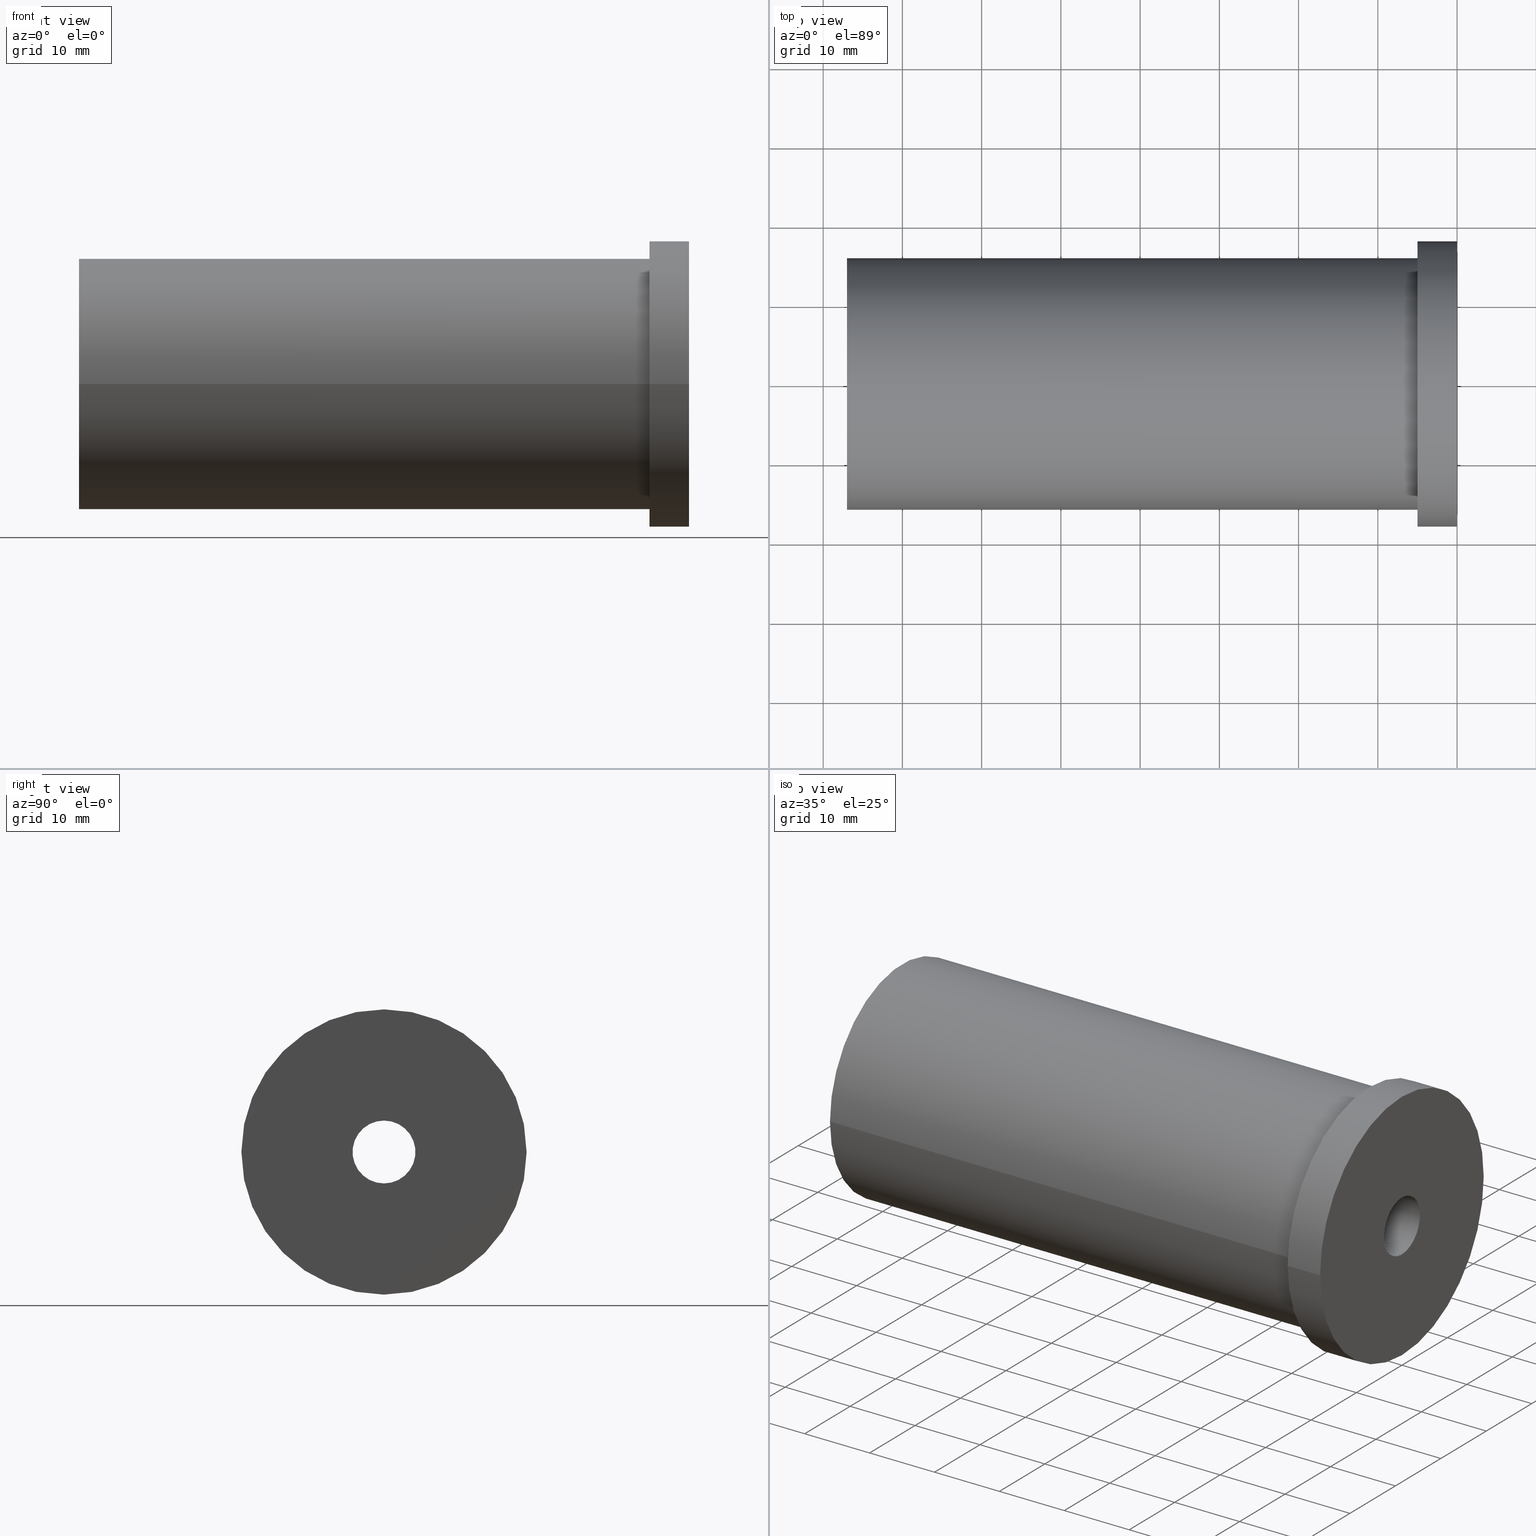
[diagram: canonical four-view strip — front | top / right | iso, engineering-drawing reading convention]
A machine part, canonical four-view strip (front | top / right | iso — engineering-drawing reading convention). The complete STEP part file that produces these views, byte-faithful:
ISO-10303-21;
HEADER;
/* Generated by software containing ST-Developer
 * from STEP Tools, Inc. (www.steptools.com) 
 */

FILE_DESCRIPTION(
/* description */ (''),
/* implementation_level */ '2;1');

FILE_NAME(
/* name */ 
'Z:\\\X2\C5F0AD6CC18C\X0\\\DRAWING_3D\\1. \X2\C778BCA4D130\X0\\\4. LAY
-OUT\\ACCESSORY&OTEHERS\\POWER MILLING CHUCK\\CK-COLLET\\INCH\\CK31.75
\\CK31.75-7.9375\\CK31.75-7.9375.stp',
/* time_stamp */ '2023-06-13T13:29:21+09:00',
/* author */ ('eos'),
/* organization */ (''),
/* preprocessor_version */ 'ST-DEVELOPER v18.1',
/* originating_system */ 'Autodesk Inventor 2022',
/* authorisation */ '');

FILE_SCHEMA (('AUTOMOTIVE_DESIGN { 1 0 10303 214 3 1 1 }'));
ENDSEC;

DATA;
#10=MECHANICAL_DESIGN_GEOMETRIC_PRESENTATION_REPRESENTATION('',(#13),#289);
#11=SHAPE_REPRESENTATION_RELATIONSHIP('SRR','None',#296,#12);
#12=ADVANCED_BREP_SHAPE_REPRESENTATION('',(#14),#288);
#13=STYLED_ITEM('',(#305),#14);
#14=MANIFOLD_SOLID_BREP('\X2\C194B9ACB4DC\X0\1',#151);
#15=FACE_BOUND('',#40,.T.);
#16=FACE_BOUND('',#42,.T.);
#17=FACE_BOUND('',#45,.T.);
#18=PLANE('',#189);
#19=PLANE('',#190);
#20=PLANE('',#194);
#21=CONICAL_SURFACE('',#178,5.,1.02974425867665);
#22=CONICAL_SURFACE('',#182,6.3440505,1.02974425867665);
#23=FACE_OUTER_BOUND('',#33,.T.);
#24=FACE_OUTER_BOUND('',#34,.T.);
#25=FACE_OUTER_BOUND('',#35,.T.);
#26=FACE_OUTER_BOUND('',#36,.T.);
#27=FACE_OUTER_BOUND('',#37,.T.);
#28=FACE_OUTER_BOUND('',#38,.T.);
#29=FACE_OUTER_BOUND('',#39,.T.);
#30=FACE_OUTER_BOUND('',#41,.T.);
#31=FACE_OUTER_BOUND('',#43,.T.);
#32=FACE_OUTER_BOUND('',#44,.T.);
#33=EDGE_LOOP('',(#100,#101,#102,#103,#104));
#34=EDGE_LOOP('',(#105,#106,#107,#108,#109));
#35=EDGE_LOOP('',(#110,#111,#112,#113));
#36=EDGE_LOOP('',(#114,#115,#116,#117));
#37=EDGE_LOOP('',(#118,#119,#120,#121));
#38=EDGE_LOOP('',(#122,#123,#124,#125));
#39=EDGE_LOOP('',(#126));
#40=EDGE_LOOP('',(#127));
#41=EDGE_LOOP('',(#128));
#42=EDGE_LOOP('',(#129));
#43=EDGE_LOOP('',(#130,#131,#132,#133));
#44=EDGE_LOOP('',(#134));
#45=EDGE_LOOP('',(#135));
#46=LINE('',#251,#53);
#47=LINE('',#258,#54);
#48=LINE('',#262,#55);
#49=LINE('',#266,#56);
#50=LINE('',#270,#57);
#51=LINE('',#275,#58);
#52=LINE('',#284,#59);
#53=VECTOR('',#201,3.96875);
#54=VECTOR('',#210,5.);
#55=VECTOR('',#215,10.);
#56=VECTOR('',#220,6.3440505);
#57=VECTOR('',#225,12.688101);
#58=VECTOR('',#230,18.);
#59=VECTOR('',#243,15.8750000000001);
#60=CIRCLE('',#175,3.96875);
#61=CIRCLE('',#176,3.96875);
#62=CIRCLE('',#177,3.96875);
#63=CIRCLE('',#179,10.);
#64=CIRCLE('',#181,10.);
#65=CIRCLE('',#183,12.688101);
#66=CIRCLE('',#185,12.688101);
#67=CIRCLE('',#187,18.);
#68=CIRCLE('',#188,18.);
#69=CIRCLE('',#191,15.875);
#70=CIRCLE('',#193,15.8750000000001);
#71=VERTEX_POINT('',#248);
#72=VERTEX_POINT('',#250);
#73=VERTEX_POINT('',#252);
#74=VERTEX_POINT('',#256);
#75=VERTEX_POINT('',#260);
#76=VERTEX_POINT('',#264);
#77=VERTEX_POINT('',#268);
#78=VERTEX_POINT('',#272);
#79=VERTEX_POINT('',#274);
#80=VERTEX_POINT('',#279);
#81=VERTEX_POINT('',#282);
#82=EDGE_CURVE('',#71,#71,#60,.T.);
#83=EDGE_CURVE('',#71,#72,#46,.T.);
#84=EDGE_CURVE('',#73,#72,#61,.T.);
#85=EDGE_CURVE('',#72,#73,#62,.T.);
#86=EDGE_CURVE('',#74,#74,#63,.T.);
#87=EDGE_CURVE('',#74,#73,#47,.T.);
#88=EDGE_CURVE('',#75,#75,#64,.T.);
#89=EDGE_CURVE('',#75,#74,#48,.T.);
#90=EDGE_CURVE('',#76,#76,#65,.T.);
#91=EDGE_CURVE('',#76,#75,#49,.T.);
#92=EDGE_CURVE('',#77,#77,#66,.T.);
#93=EDGE_CURVE('',#77,#76,#50,.T.);
#94=EDGE_CURVE('',#78,#78,#67,.T.);
#95=EDGE_CURVE('',#78,#79,#51,.T.);
#96=EDGE_CURVE('',#79,#79,#68,.T.);
#97=EDGE_CURVE('',#80,#80,#69,.T.);
#98=EDGE_CURVE('',#81,#81,#70,.T.);
#99=EDGE_CURVE('',#81,#80,#52,.T.);
#100=ORIENTED_EDGE('',*,*,#82,.F.);
#101=ORIENTED_EDGE('',*,*,#83,.T.);
#102=ORIENTED_EDGE('',*,*,#84,.F.);
#103=ORIENTED_EDGE('',*,*,#85,.F.);
#104=ORIENTED_EDGE('',*,*,#83,.F.);
#105=ORIENTED_EDGE('',*,*,#86,.T.);
#106=ORIENTED_EDGE('',*,*,#87,.T.);
#107=ORIENTED_EDGE('',*,*,#84,.T.);
#108=ORIENTED_EDGE('',*,*,#85,.T.);
#109=ORIENTED_EDGE('',*,*,#87,.F.);
#110=ORIENTED_EDGE('',*,*,#88,.F.);
#111=ORIENTED_EDGE('',*,*,#89,.T.);
#112=ORIENTED_EDGE('',*,*,#86,.F.);
#113=ORIENTED_EDGE('',*,*,#89,.F.);
#114=ORIENTED_EDGE('',*,*,#90,.T.);
#115=ORIENTED_EDGE('',*,*,#91,.T.);
#116=ORIENTED_EDGE('',*,*,#88,.T.);
#117=ORIENTED_EDGE('',*,*,#91,.F.);
#118=ORIENTED_EDGE('',*,*,#92,.F.);
#119=ORIENTED_EDGE('',*,*,#93,.T.);
#120=ORIENTED_EDGE('',*,*,#90,.F.);
#121=ORIENTED_EDGE('',*,*,#93,.F.);
#122=ORIENTED_EDGE('',*,*,#94,.F.);
#123=ORIENTED_EDGE('',*,*,#95,.T.);
#124=ORIENTED_EDGE('',*,*,#96,.T.);
#125=ORIENTED_EDGE('',*,*,#95,.F.);
#126=ORIENTED_EDGE('',*,*,#94,.T.);
#127=ORIENTED_EDGE('',*,*,#82,.T.);
#128=ORIENTED_EDGE('',*,*,#97,.F.);
#129=ORIENTED_EDGE('',*,*,#92,.T.);
#130=ORIENTED_EDGE('',*,*,#98,.F.);
#131=ORIENTED_EDGE('',*,*,#99,.T.);
#132=ORIENTED_EDGE('',*,*,#97,.T.);
#133=ORIENTED_EDGE('',*,*,#99,.F.);
#134=ORIENTED_EDGE('',*,*,#96,.F.);
#135=ORIENTED_EDGE('',*,*,#98,.T.);
#136=CYLINDRICAL_SURFACE('',#174,3.96875);
#137=CYLINDRICAL_SURFACE('',#180,10.);
#138=CYLINDRICAL_SURFACE('',#184,12.688101);
#139=CYLINDRICAL_SURFACE('',#186,18.);
#140=CYLINDRICAL_SURFACE('',#192,15.8750000000001);
#141=ADVANCED_FACE('',(#23),#136,.F.);
#142=ADVANCED_FACE('',(#24),#21,.F.);
#143=ADVANCED_FACE('',(#25),#137,.F.);
#144=ADVANCED_FACE('',(#26),#22,.F.);
#145=ADVANCED_FACE('',(#27),#138,.F.);
#146=ADVANCED_FACE('',(#28),#139,.T.);
#147=ADVANCED_FACE('',(#29,#15),#18,.T.);
#148=ADVANCED_FACE('',(#30,#16),#19,.T.);
#149=ADVANCED_FACE('',(#31),#140,.T.);
#150=ADVANCED_FACE('',(#32,#17),#20,.T.);
#151=CLOSED_SHELL('',(#141,#142,#143,#144,#145,#146,#147,#148,#149,#150));
#152=DERIVED_UNIT_ELEMENT(#155,1.);
#153=DERIVED_UNIT_ELEMENT(#291,-3.);
#154=DIMENSIONAL_EXPONENTS(1.,0.,0.,0.,0.,0.,0.);
#155=(
CONVERSION_BASED_UNIT('gram',#157)
MASS_UNIT()
NAMED_UNIT(#154)
);
#156=(
MASS_UNIT()
NAMED_UNIT(*)
SI_UNIT(.KILO.,.GRAM.)
);
#157=MASS_MEASURE_WITH_UNIT(MASS_MEASURE(0.001),#156);
#158=DERIVED_UNIT((#152,#153));
#159=MEASURE_REPRESENTATION_ITEM('density measure',
POSITIVE_RATIO_MEASURE(1.),#158);
#160=PROPERTY_DEFINITION_REPRESENTATION(#165,#162);
#161=PROPERTY_DEFINITION_REPRESENTATION(#166,#163);
#162=REPRESENTATION('material name',(#164),#288);
#163=REPRESENTATION('density',(#159),#288);
#164=DESCRIPTIVE_REPRESENTATION_ITEM('\X2\C77CBC18\X0\','\X2\C77CBC18\X0\');
#165=PROPERTY_DEFINITION('material property','material name',#298);
#166=PROPERTY_DEFINITION('material property','density of part',#298);
#167=DATE_TIME_ROLE('creation_date');
#168=APPLIED_DATE_AND_TIME_ASSIGNMENT(#169,#167,(#298));
#169=DATE_AND_TIME(#170,#171);
#170=CALENDAR_DATE(2023,13,6);
#171=LOCAL_TIME(0,0,0.,#172);
#172=COORDINATED_UNIVERSAL_TIME_OFFSET(0,0,.BEHIND.);
#173=AXIS2_PLACEMENT_3D('placement',#246,#195,#196);
#174=AXIS2_PLACEMENT_3D('',#247,#197,#198);
#175=AXIS2_PLACEMENT_3D('',#249,#199,#200);
#176=AXIS2_PLACEMENT_3D('',#253,#202,#203);
#177=AXIS2_PLACEMENT_3D('',#254,#204,#205);
#178=AXIS2_PLACEMENT_3D('',#255,#206,#207);
#179=AXIS2_PLACEMENT_3D('',#257,#208,#209);
#180=AXIS2_PLACEMENT_3D('',#259,#211,#212);
#181=AXIS2_PLACEMENT_3D('',#261,#213,#214);
#182=AXIS2_PLACEMENT_3D('',#263,#216,#217);
#183=AXIS2_PLACEMENT_3D('',#265,#218,#219);
#184=AXIS2_PLACEMENT_3D('',#267,#221,#222);
#185=AXIS2_PLACEMENT_3D('',#269,#223,#224);
#186=AXIS2_PLACEMENT_3D('',#271,#226,#227);
#187=AXIS2_PLACEMENT_3D('',#273,#228,#229);
#188=AXIS2_PLACEMENT_3D('',#276,#231,#232);
#189=AXIS2_PLACEMENT_3D('',#277,#233,#234);
#190=AXIS2_PLACEMENT_3D('',#278,#235,#236);
#191=AXIS2_PLACEMENT_3D('',#280,#237,#238);
#192=AXIS2_PLACEMENT_3D('',#281,#239,#240);
#193=AXIS2_PLACEMENT_3D('',#283,#241,#242);
#194=AXIS2_PLACEMENT_3D('',#285,#244,#245);
#195=DIRECTION('axis',(0.,0.,1.));
#196=DIRECTION('refdir',(1.,0.,0.));
#197=DIRECTION('center_axis',(1.,0.,0.));
#198=DIRECTION('ref_axis',(0.,0.,-1.));
#199=DIRECTION('center_axis',(-1.,0.,0.));
#200=DIRECTION('ref_axis',(0.,0.,-1.));
#201=DIRECTION('',(-1.,0.,0.));
#202=DIRECTION('center_axis',(1.,0.,0.));
#203=DIRECTION('ref_axis',(0.,0.,-1.));
#204=DIRECTION('center_axis',(1.,0.,0.));
#205=DIRECTION('ref_axis',(0.,0.,-1.));
#206=DIRECTION('center_axis',(-1.,0.,0.));
#207=DIRECTION('ref_axis',(0.,0.,1.));
#208=DIRECTION('center_axis',(-1.,0.,0.));
#209=DIRECTION('ref_axis',(0.,0.,1.));
#210=DIRECTION('',(0.515038074910054,1.04972719113862E-16,0.857167300702112));
#211=DIRECTION('center_axis',(-1.,0.,0.));
#212=DIRECTION('ref_axis',(0.,0.,1.));
#213=DIRECTION('center_axis',(1.,0.,0.));
#214=DIRECTION('ref_axis',(0.,0.,1.));
#215=DIRECTION('',(1.,0.,0.));
#216=DIRECTION('center_axis',(-1.,0.,0.));
#217=DIRECTION('ref_axis',(0.,0.,1.));
#218=DIRECTION('center_axis',(-1.,0.,0.));
#219=DIRECTION('ref_axis',(0.,0.,1.));
#220=DIRECTION('',(0.515038074910054,1.04972719113862E-16,0.857167300702112));
#221=DIRECTION('center_axis',(-1.,0.,0.));
#222=DIRECTION('ref_axis',(0.,0.,1.));
#223=DIRECTION('center_axis',(1.,0.,0.));
#224=DIRECTION('ref_axis',(0.,0.,1.));
#225=DIRECTION('',(1.,0.,0.));
#226=DIRECTION('center_axis',(1.,0.,0.));
#227=DIRECTION('ref_axis',(0.,1.,0.));
#228=DIRECTION('center_axis',(1.,0.,0.));
#229=DIRECTION('ref_axis',(0.,0.,-1.));
#230=DIRECTION('',(-1.,0.,0.));
#231=DIRECTION('center_axis',(1.,0.,0.));
#232=DIRECTION('ref_axis',(0.,0.,-1.));
#233=DIRECTION('center_axis',(1.,0.,0.));
#234=DIRECTION('ref_axis',(0.,0.,-1.));
#235=DIRECTION('center_axis',(-1.,0.,0.));
#236=DIRECTION('ref_axis',(0.,0.,1.));
#237=DIRECTION('center_axis',(1.,0.,0.));
#238=DIRECTION('ref_axis',(0.,0.,-1.));
#239=DIRECTION('center_axis',(1.,0.,0.));
#240=DIRECTION('ref_axis',(0.,1.,0.));
#241=DIRECTION('center_axis',(1.,0.,0.));
#242=DIRECTION('ref_axis',(0.,0.,-1.));
#243=DIRECTION('',(-1.,0.,0.));
#244=DIRECTION('center_axis',(-1.,0.,0.));
#245=DIRECTION('ref_axis',(0.,0.,1.));
#246=CARTESIAN_POINT('',(0.,0.,0.));
#247=CARTESIAN_POINT('Origin',(-92.3092628071528,0.,0.));
#248=CARTESIAN_POINT('',(0.,-4.86031698411606E-16,3.96875));
#249=CARTESIAN_POINT('Origin',(0.,0.,0.));
#250=CARTESIAN_POINT('',(-28.37605939149,-4.86031698411606E-16,3.96875));
#251=CARTESIAN_POINT('',(-92.3092628071528,-4.86031698411606E-16,3.96875));
#252=CARTESIAN_POINT('',(-28.37605939149,-4.86031698411606E-16,-3.96875));
#253=CARTESIAN_POINT('Origin',(-28.37605939149,0.,0.));
#254=CARTESIAN_POINT('Origin',(-28.37605939149,0.,0.));
#255=CARTESIAN_POINT('Origin',(-28.9956969048622,0.,0.));
#256=CARTESIAN_POINT('',(-32.,-1.22464679914735E-15,-10.));
#257=CARTESIAN_POINT('Origin',(-32.,0.,0.));
#258=CARTESIAN_POINT('',(-28.9956969048622,-6.12323399573677E-16,-5.));
#259=CARTESIAN_POINT('Origin',(-54.5,0.,0.));
#260=CARTESIAN_POINT('',(-55.3848259691314,1.22464679914735E-15,-10.));
#261=CARTESIAN_POINT('Origin',(-55.3848259691314,0.,0.));
#262=CARTESIAN_POINT('',(-54.5,-1.22464679914735E-15,-10.));
#263=CARTESIAN_POINT('Origin',(-53.1881098894279,0.,0.));
#264=CARTESIAN_POINT('',(-57.,-1.55384422769083E-15,-12.688101));
#265=CARTESIAN_POINT('Origin',(-57.,0.,0.));
#266=CARTESIAN_POINT('',(-53.1881098894279,-7.76922113845417E-16,-6.3440505));
#267=CARTESIAN_POINT('Origin',(-67.,0.,0.));
#268=CARTESIAN_POINT('',(-77.,-1.55384422769083E-15,-12.688101));
#269=CARTESIAN_POINT('Origin',(-77.,0.,0.));
#270=CARTESIAN_POINT('',(-67.,-1.55384422769083E-15,-12.688101));
#271=CARTESIAN_POINT('Origin',(-2.49999999999999,0.,0.));
#272=CARTESIAN_POINT('',(5.55111512312578E-15,-18.,-2.20436423846524E-15));
#273=CARTESIAN_POINT('Origin',(5.55111512312578E-15,0.,0.));
#274=CARTESIAN_POINT('',(-4.99999999999999,-18.,-2.20436423846524E-15));
#275=CARTESIAN_POINT('',(-2.49999999999999,-18.,-2.20436423846524E-15));
#276=CARTESIAN_POINT('Origin',(-4.99999999999999,0.,0.));
#277=CARTESIAN_POINT('Origin',(1.24504562061398E-31,2.26081779560032E-14,
0.));
#278=CARTESIAN_POINT('Origin',(-77.,15.875,0.));
#279=CARTESIAN_POINT('',(-77.,-15.8750000000001,-1.94412679364643E-15));
#280=CARTESIAN_POINT('Origin',(-77.,0.,0.));
#281=CARTESIAN_POINT('Origin',(-41.,0.,0.));
#282=CARTESIAN_POINT('',(-5.,-15.8750000000001,-1.94412679364643E-15));
#283=CARTESIAN_POINT('Origin',(-5.,0.,0.));
#284=CARTESIAN_POINT('',(-41.,-15.8750000000001,-1.94412679364643E-15));
#285=CARTESIAN_POINT('Origin',(-4.99999999999999,18.,0.));
#286=UNCERTAINTY_MEASURE_WITH_UNIT(LENGTH_MEASURE(0.01),#290,
'DISTANCE_ACCURACY_VALUE',
'Maximum model space distance between geometric entities at asserted c
onnectivities');
#287=UNCERTAINTY_MEASURE_WITH_UNIT(LENGTH_MEASURE(0.01),#290,
'DISTANCE_ACCURACY_VALUE',
'Maximum model space distance between geometric entities at asserted c
onnectivities');
#288=(
GEOMETRIC_REPRESENTATION_CONTEXT(3)
GLOBAL_UNCERTAINTY_ASSIGNED_CONTEXT((#286))
GLOBAL_UNIT_ASSIGNED_CONTEXT((#290,#292,#293))
REPRESENTATION_CONTEXT('','3D')
);
#289=(
GEOMETRIC_REPRESENTATION_CONTEXT(3)
GLOBAL_UNCERTAINTY_ASSIGNED_CONTEXT((#287))
GLOBAL_UNIT_ASSIGNED_CONTEXT((#290,#292,#293))
REPRESENTATION_CONTEXT('','3D')
);
#290=(
LENGTH_UNIT()
NAMED_UNIT(*)
SI_UNIT(.MILLI.,.METRE.)
);
#291=(
LENGTH_UNIT()
NAMED_UNIT(*)
SI_UNIT(.CENTI.,.METRE.)
);
#292=(
NAMED_UNIT(*)
PLANE_ANGLE_UNIT()
SI_UNIT($,.RADIAN.)
);
#293=(
NAMED_UNIT(*)
SI_UNIT($,.STERADIAN.)
SOLID_ANGLE_UNIT()
);
#294=SHAPE_DEFINITION_REPRESENTATION(#295,#296);
#295=PRODUCT_DEFINITION_SHAPE('',$,#298);
#296=SHAPE_REPRESENTATION('',(#173),#288);
#297=PRODUCT_DEFINITION_CONTEXT('part definition',#302,'design');
#298=PRODUCT_DEFINITION('LO-CK19.05-6','LO-CK31.75-7.9375',#299,#297);
#299=PRODUCT_DEFINITION_FORMATION('',$,#304);
#300=PRODUCT_RELATED_PRODUCT_CATEGORY('LO-CK31.75-7.9375',
'LO-CK31.75-7.9375',(#304));
#301=APPLICATION_PROTOCOL_DEFINITION('international standard',
'automotive_design',2009,#302);
#302=APPLICATION_CONTEXT(
'Core Data for Automotive Mechanical Design Process');
#303=PRODUCT_CONTEXT('part definition',#302,'mechanical');
#304=PRODUCT('LO-CK19.05-6','LO-CK31.75-7.9375',$,(#303));
#305=PRESENTATION_STYLE_ASSIGNMENT((#306));
#306=SURFACE_STYLE_USAGE(.BOTH.,#309);
#307=SURFACE_STYLE_RENDERING_WITH_PROPERTIES($,#313,(#308));
#308=SURFACE_STYLE_TRANSPARENT(0.339999973773956);
#309=SURFACE_SIDE_STYLE('',(#310,#307));
#310=SURFACE_STYLE_FILL_AREA(#311);
#311=FILL_AREA_STYLE('',(#312));
#312=FILL_AREA_STYLE_COLOUR('',#313);
#313=COLOUR_RGB('',0.925490196078431,0.945098039215686,0.937254901960784);
ENDSEC;
END-ISO-10303-21;
